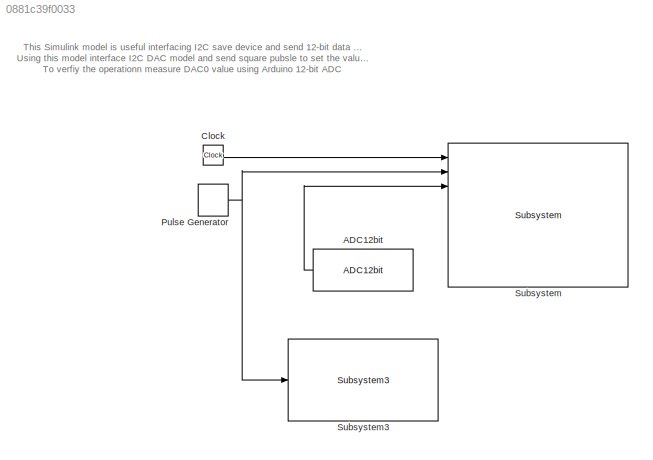
MODEL slx_0881c39f0033
KIND model
CONFIG AbsTol = auto
CONFIG EnableMultiTasking = on
CONFIG FixedStep = 0.1
CONFIG MaxStep = auto
CONFIG MinStep = auto
CONFIG RelTol = 1e-3
CONFIG SampleTimeConstraint = Unconstrained
CONFIG Solver = FixedStepAuto
CONFIG SolverName = FixedStepAuto
CONFIG StartTime = 0.0
CONFIG StopTime = inf
BLOCK [Reference] ADC12bit  REF=EEE481Arduino/ADC12bit
  Ports = [0, 1]
  SourceBlock = EEE481Arduino/ADC12bit
BLOCK [Clock] Clock
BLOCK [DiscretePulseGenerator] Pulse Generator
  Amplitude = 4000
  Period = 10
  Ports = [0, 1]
  PulseType = Time based
  PulseWidth = 5
BLOCK [Reference] Subsystem  REF=EEE481Arduino/Subsystem
  Ports = [9, 3]
  SourceBlock = EEE481Arduino/Subsystem
BLOCK [Reference] Subsystem3  REF=EEE481Arduino/Subsystem3
  Ports = [1]
  SourceBlock = EEE481Arduino/Subsystem3
ANNOTATION (root): This Simulink model is useful interfacing I2C save device and send 12-bit data to that device Using this model interface I2C DAC model and send square pubsle to set the value of DAC0 To verfiy the operationn measure DAC0 value using Arduino 12-bit ADC
LINE ADC12bit:1 -> Subsystem:3
LINE Clock:1 -> Subsystem:1
NET Pulse Generator:1 -> Subsystem3:1, Subsystem:2
note: NET lines group one-source signal fan-out (src -> all destinations, sorted); 1:1 wires keep LINE
